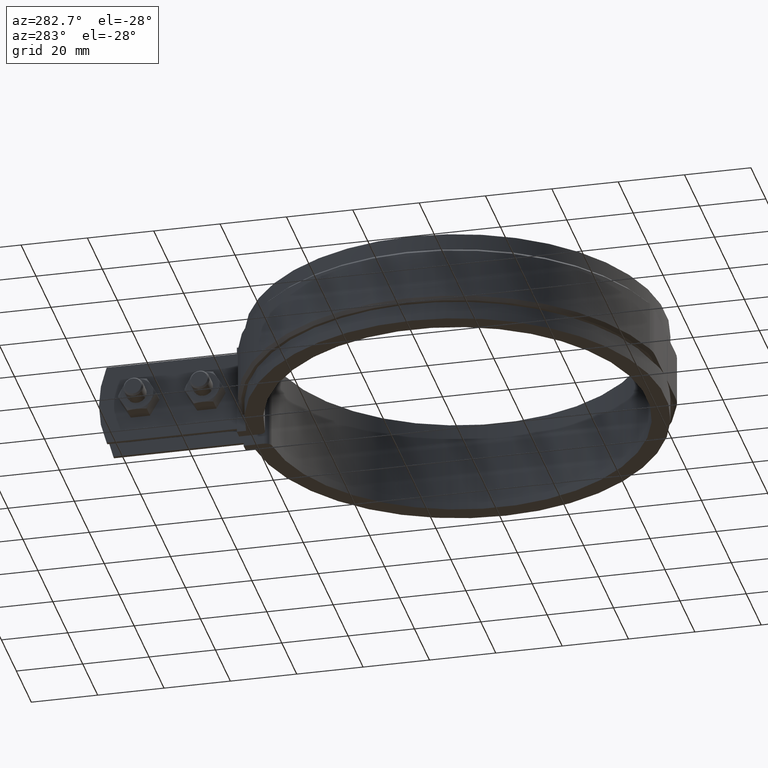
[diagram: clean part render]
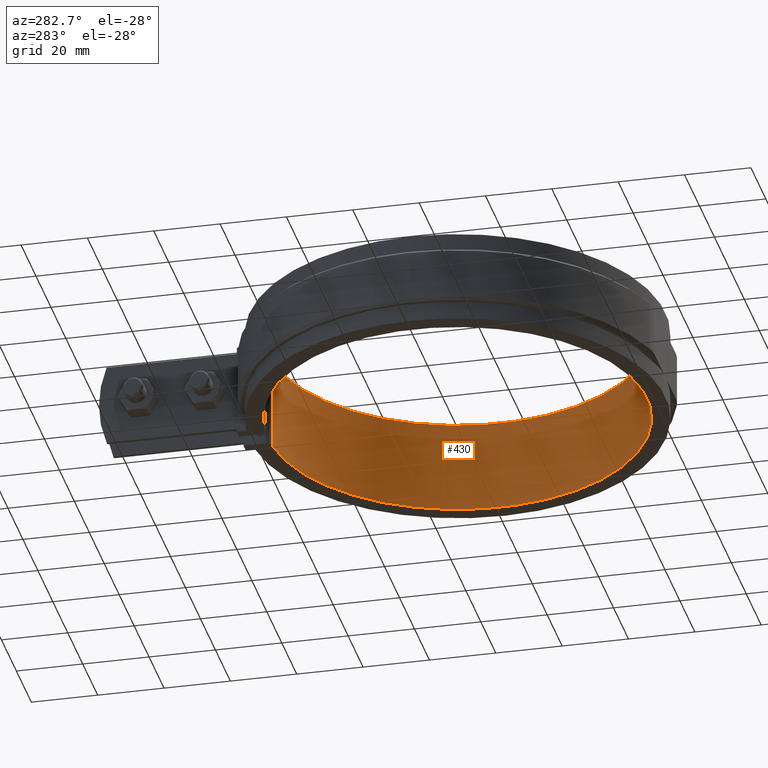
[diagram: same view with one face highlighted and labeled with its STEP entity id]
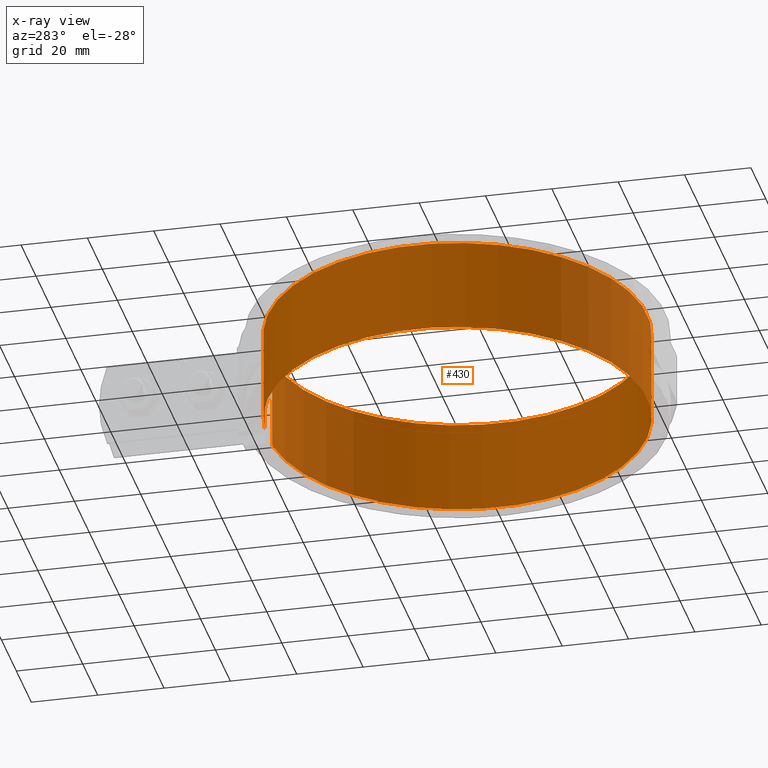
[diagram: x-ray of the same camera — body ghosted, the highlighted face saturated]
A machine part, auxiliary view. The second image highlights one B-rep face of the part: STEP entity #430.
The next image is the same camera in x-ray: the body ghosted, the highlighted face saturated — about 1% of this face is hidden behind the body in this view.
In plain terms, the highlighted cylindrical surface (partial cylindrical patch) has radius 57.15 mm, axis along (0, 0, -1).
Its self-contained STEP definition (entity closure, byte-faithful):
#430 = ADVANCED_FACE( '', ( #752 ), #753, .F. );
#752 = FACE_OUTER_BOUND( '', #1714, .T. );
#753 = CYLINDRICAL_SURFACE( '', #1715, 57.1500000000000 );
#1714 = EDGE_LOOP( '', ( #3297, #3298, #3299, #3300 ) );
#1715 = AXIS2_PLACEMENT_3D( '', #3301, #3302, #3303 );
#3297 = ORIENTED_EDGE( '', *, *, #4121, .F. );
#3298 = ORIENTED_EDGE( '', *, *, #4016, .F. );
#3299 = ORIENTED_EDGE( '', *, *, #4118, .T. );
#3300 = ORIENTED_EDGE( '', *, *, #4170, .T. );
#3301 = CARTESIAN_POINT( '', ( 0.000000000000000, 0.000000000000000, -14.0000000000000 ) );
#3302 = DIRECTION( '', ( 0.000000000000000, 0.000000000000000, -1.00000000000000 ) );
#3303 = DIRECTION( '', ( -0.0845308537616220, -0.996420862267712, 0.000000000000000 ) );
#4016 = EDGE_CURVE( '', #4631, #4627, #4633, .T. );
#4118 = EDGE_CURVE( '', #4631, #4799, #4801, .T. );
#4121 = EDGE_CURVE( '', #4627, #4805, #4806, .T. );
#4170 = EDGE_CURVE( '', #4799, #4805, #4876, .T. );
#4627 = VERTEX_POINT( '', #6734 );
#4631 = VERTEX_POINT( '', #6739 );
#4633 = LINE( '', #6741, #6742 );
#4799 = VERTEX_POINT( '', #7470 );
#4801 = CIRCLE( '', #7472, 57.1500000000000 );
#4805 = VERTEX_POINT( '', #7478 );
#4806 = CIRCLE( '', #7479, 57.1500000000000 );
#4876 = LINE( '', #7584, #7585 );
#6734 = CARTESIAN_POINT( '', ( 4.83093829247670, 56.9454522785998, 14.0000000000000 ) );
#6739 = CARTESIAN_POINT( '', ( 4.83093829247670, 56.9454522785998, -14.0000000000000 ) );
#6741 = CARTESIAN_POINT( '', ( 4.83093829247670, 56.9454522785998, -14.0000000000000 ) );
#6742 = VECTOR( '', #8250, 1000.00000000000 );
#7470 = CARTESIAN_POINT( '', ( -4.83093829247667, 56.9454522785998, -14.0000000000000 ) );
#7472 = AXIS2_PLACEMENT_3D( '', #8363, #8364, #8365 );
#7478 = CARTESIAN_POINT( '', ( -4.83093829247667, 56.9454522785998, 14.0000000000000 ) );
#7479 = AXIS2_PLACEMENT_3D( '', #8368, #8369, #8370 );
#7584 = CARTESIAN_POINT( '', ( -4.83093829247667, 56.9454522785998, -14.0000000000000 ) );
#7585 = VECTOR( '', #8454, 1000.00000000000 );
#8250 = DIRECTION( '', ( 0.000000000000000, 0.000000000000000, 1.00000000000000 ) );
#8363 = CARTESIAN_POINT( '', ( 0.000000000000000, 0.000000000000000, -14.0000000000000 ) );
#8364 = DIRECTION( '', ( 0.000000000000000, 0.000000000000000, -1.00000000000000 ) );
#8365 = DIRECTION( '', ( 1.00000000000000, -2.77555756156289E-017, 0.000000000000000 ) );
#8368 = CARTESIAN_POINT( '', ( 0.000000000000000, 0.000000000000000, 14.0000000000000 ) );
#8369 = DIRECTION( '', ( 0.000000000000000, 0.000000000000000, -1.00000000000000 ) );
#8370 = DIRECTION( '', ( 1.00000000000000, -2.77555756156289E-017, 0.000000000000000 ) );
#8454 = DIRECTION( '', ( 0.000000000000000, 0.000000000000000, 1.00000000000000 ) );